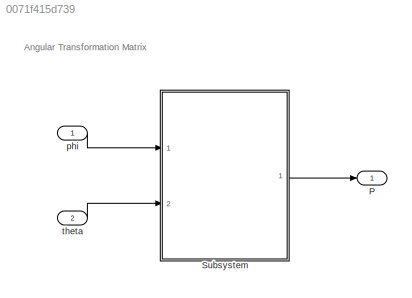
MODEL slx_0071f415d739
KIND model
CONFIG AbsTol = auto
CONFIG EnableMultiTasking = off
CONFIG FixedStep = auto
CONFIG MaxStep = auto
CONFIG MinStep = auto
CONFIG RelTol = 1e-3
CONFIG SampleTimeConstraint = Unconstrained
CONFIG Solver = VariableStepAuto
CONFIG SolverName = VariableStepAuto
CONFIG StartTime = 0.0
CONFIG StopTime = 10.0
BLOCK [Outport] P
  IconDisplay = Port number
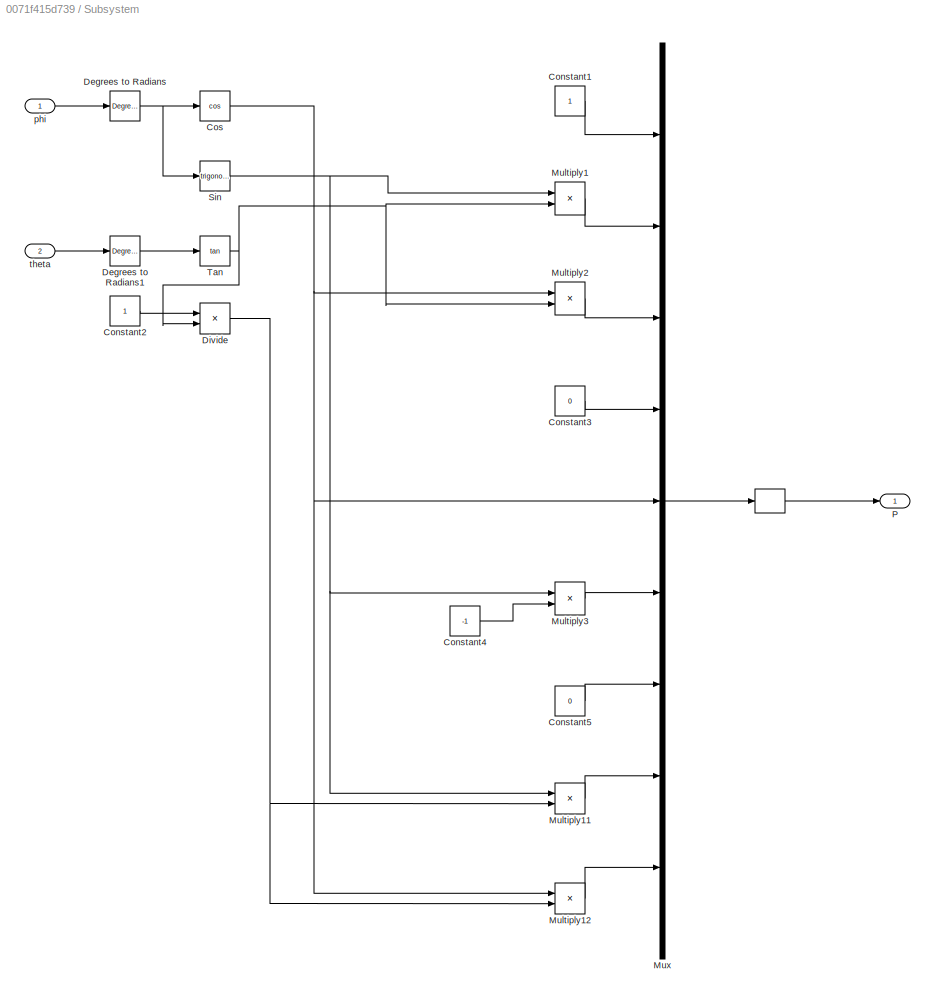
BLOCK [SubSystem] Subsystem
  Ports = [2, 1]
  RequestExecContextInheritance = off
BLOCK [Reshape] Subsystem/ 
  OutputDimensionality = Customize
  OutputDimensions = [3,3]
  Ports = [1, 1]
BLOCK [Constant] Subsystem/Constant1
BLOCK [Constant] Subsystem/Constant2
BLOCK [Constant] Subsystem/Constant3
  Value = 0
BLOCK [Constant] Subsystem/Constant4
  Value = -1
BLOCK [Constant] Subsystem/Constant5
  Value = 0
BLOCK [Trigonometry] Subsystem/Cos
  Operator = cos
  Ports = [1, 1]
BLOCK [Reference] Subsystem/Degrees to Radians  REF=simulink_extras/Transformations/Degrees to
Radians
  Ports = [1, 1]
  SourceBlock = simulink_extras/Transformations/Degrees to\nRadians
  SourceProductBaseCode = SL
  SourceProductName = Simulink
  SourceType = DegreesToRadians
BLOCK [Reference] Subsystem/Degrees to Radians1  REF=simulink_extras/Transformations/Degrees to
Radians
  Ports = [1, 1]
  SourceBlock = simulink_extras/Transformations/Degrees to\nRadians
  SourceProductBaseCode = SL
  SourceProductName = Simulink
  SourceType = DegreesToRadians
BLOCK [Product] Subsystem/Divide
  InputSameDT = off
  Inputs = */
  OutDataTypeStr = Inherit: Inherit via internal rule
  Ports = [2, 1]
  RndMeth = Floor
  SaturateOnIntegerOverflow = off
BLOCK [Product] Subsystem/Multiply1
  InputSameDT = off
  OutDataTypeStr = Inherit: Inherit via internal rule
  Ports = [2, 1]
  RndMeth = Floor
  SaturateOnIntegerOverflow = off
BLOCK [Product] Subsystem/Multiply11
  InputSameDT = off
  OutDataTypeStr = Inherit: Inherit via internal rule
  Ports = [2, 1]
  RndMeth = Floor
  SaturateOnIntegerOverflow = off
BLOCK [Product] Subsystem/Multiply12
  InputSameDT = off
  OutDataTypeStr = Inherit: Inherit via internal rule
  Ports = [2, 1]
  RndMeth = Floor
  SaturateOnIntegerOverflow = off
BLOCK [Product] Subsystem/Multiply2
  InputSameDT = off
  OutDataTypeStr = Inherit: Inherit via internal rule
  Ports = [2, 1]
  RndMeth = Floor
  SaturateOnIntegerOverflow = off
BLOCK [Product] Subsystem/Multiply3
  InputSameDT = off
  OutDataTypeStr = Inherit: Inherit via internal rule
  Ports = [2, 1]
  RndMeth = Floor
  SaturateOnIntegerOverflow = off
BLOCK [Mux] Subsystem/Mux
  DisplayOption = bar
  Inputs = 9
  Ports = [9, 1]
BLOCK [Outport] Subsystem/P
  IconDisplay = Port number
BLOCK [Trigonometry] Subsystem/Sin
  Ports = [1, 1]
BLOCK [Trigonometry] Subsystem/Tan
  Operator = tan
  Ports = [1, 1]
BLOCK [Inport] Subsystem/phi
  IconDisplay = Port number
BLOCK [Inport] Subsystem/theta
  IconDisplay = Port number
  Port = 2
BLOCK [Inport] phi
  IconDisplay = Port number
BLOCK [Inport] theta
  IconDisplay = Port number
  Port = 2
ANNOTATION (root): Angular Transformation Matrix
LINE Subsystem/ :1 -> Subsystem/P:1
LINE Subsystem/Constant1:1 -> Subsystem/Mux:1
LINE Subsystem/Constant2:1 -> Subsystem/Divide:1
LINE Subsystem/Constant3:1 -> Subsystem/Mux:4
LINE Subsystem/Constant4:1 -> Subsystem/Multiply3:2
LINE Subsystem/Constant5:1 -> Subsystem/Mux:7
NET Subsystem/Cos:1 -> Subsystem/Multiply12:1, Subsystem/Multiply2:1, Subsystem/Mux:5
LINE Subsystem/Degrees to Radians1:1 -> Subsystem/Tan:1
NET Subsystem/Degrees to Radians:1 -> Subsystem/Cos:1, Subsystem/Sin:1
NET Subsystem/Divide:1 -> Subsystem/Multiply11:2, Subsystem/Multiply12:2
LINE Subsystem/Multiply11:1 -> Subsystem/Mux:8
LINE Subsystem/Multiply12:1 -> Subsystem/Mux:9
LINE Subsystem/Multiply1:1 -> Subsystem/Mux:2
LINE Subsystem/Multiply2:1 -> Subsystem/Mux:3
LINE Subsystem/Multiply3:1 -> Subsystem/Mux:6
LINE Subsystem/Mux:1 -> Subsystem/ :1
NET Subsystem/Sin:1 -> Subsystem/Multiply11:1, Subsystem/Multiply1:1, Subsystem/Multiply3:1
NET Subsystem/Tan:1 -> Subsystem/Divide:2, Subsystem/Multiply1:2, Subsystem/Multiply2:2
LINE Subsystem/phi:1 -> Subsystem/Degrees to Radians:1
LINE Subsystem/theta:1 -> Subsystem/Degrees to Radians1:1
LINE Subsystem:1 -> P:1
LINE phi:1 -> Subsystem:1
LINE theta:1 -> Subsystem:2
note: NET lines group one-source signal fan-out (src -> all destinations, sorted); 1:1 wires keep LINE
